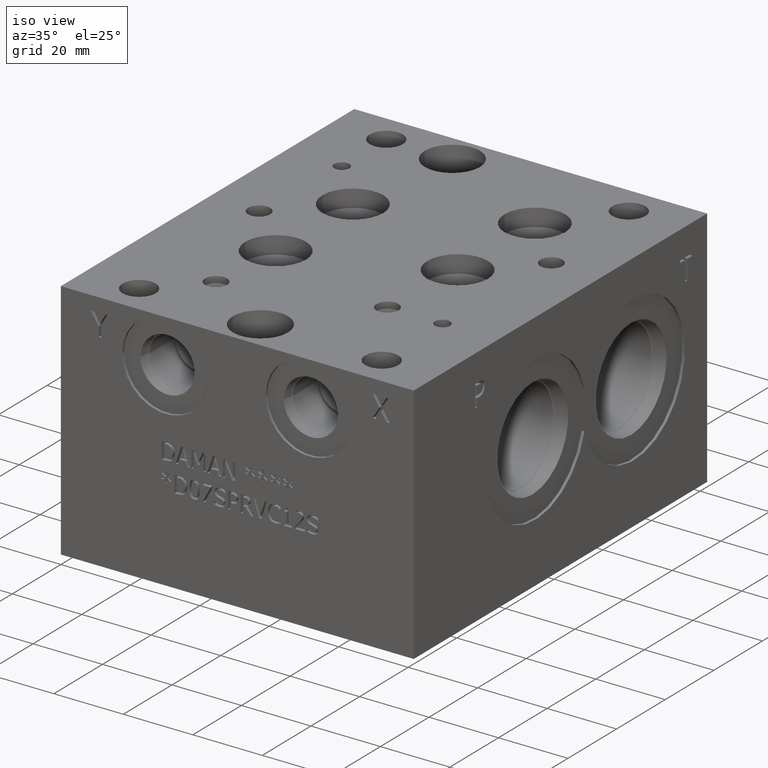
[diagram: clean part render]
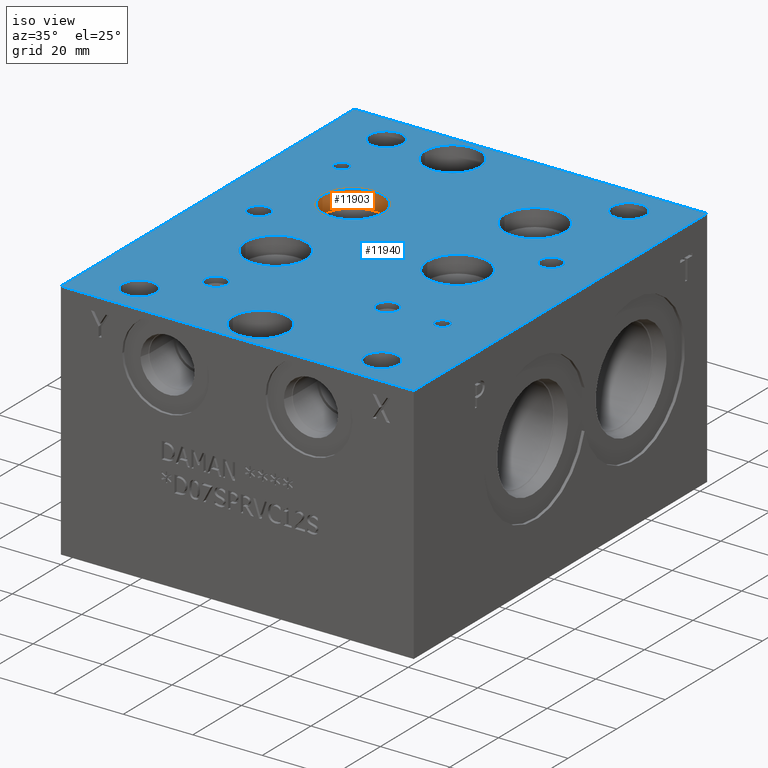
[diagram: same view with the hole feature highlighted: cylindrical wall and planar end face, labeled with their STEP entity ids]
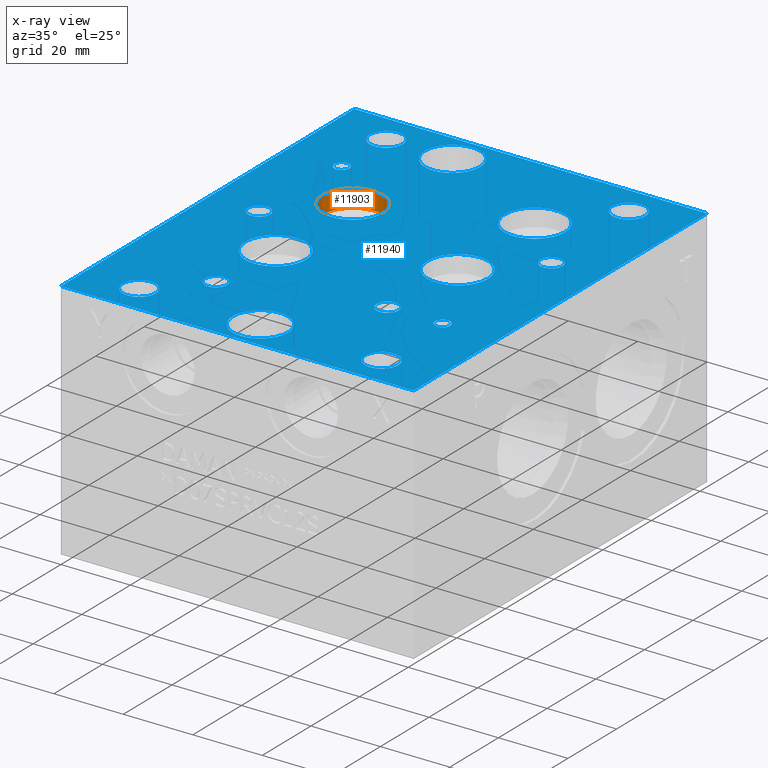
[diagram: x-ray of the same camera — body ghosted, the hole faces saturated]
A machine part, iso view. The highlighted faces form one hole feature of diameter 17.4752 mm: the cylindrical wall (entity #11903, orange) and its adjacent planar end face (entity #11940, blue) — they share a circular edge in the B-rep.
The next image is the same camera in x-ray (body ghosted, the hole faces saturated) — the bore reads through the body.
Wall:
#123=CYLINDRICAL_SURFACE('',#12580,8.7376);
#329=CIRCLE('',#12578,8.7376);
#330=CIRCLE('',#12579,8.7376);
#331=CIRCLE('',#12581,8.7376);
#332=CIRCLE('',#12582,8.7376);
#1480=FACE_OUTER_BOUND('',#2151,.T.);
#2151=EDGE_LOOP('',(#10329,#10330,#10331,#10332,#10333,#10334));
#3287=LINE('',#20433,#4392);
#4392=VECTOR('',#15015,8.7376);
#5477=VERTEX_POINT('',#20422);
#5478=VERTEX_POINT('',#20423);
#5480=VERTEX_POINT('',#20429);
#5481=VERTEX_POINT('',#20430);
#7119=EDGE_CURVE('',#5477,#5478,#329,.T.);
#7121=EDGE_CURVE('',#5478,#5477,#330,.T.);
#7122=EDGE_CURVE('',#5480,#5481,#331,.T.);
#7123=EDGE_CURVE('',#5481,#5480,#332,.T.);
#7124=EDGE_CURVE('',#5481,#5478,#3287,.T.);
#10329=ORIENTED_EDGE('',*,*,#7122,.F.);
#10330=ORIENTED_EDGE('',*,*,#7123,.F.);
#10331=ORIENTED_EDGE('',*,*,#7124,.T.);
#10332=ORIENTED_EDGE('',*,*,#7119,.F.);
#10333=ORIENTED_EDGE('',*,*,#7121,.F.);
#10334=ORIENTED_EDGE('',*,*,#7124,.F.);
#11903=ADVANCED_FACE('',(#1480),#123,.F.);
#12578=AXIS2_PLACEMENT_3D('',#20424,#15004,#15005);
#12579=AXIS2_PLACEMENT_3D('',#20427,#15007,#15008);
#12580=AXIS2_PLACEMENT_3D('',#20428,#15009,#15010);
#12581=AXIS2_PLACEMENT_3D('',#20431,#15011,#15012);
#12582=AXIS2_PLACEMENT_3D('',#20432,#15013,#15014);
#15004=DIRECTION('center_axis',(0.,0.,1.));
#15005=DIRECTION('ref_axis',(1.,0.,0.));
#15007=DIRECTION('center_axis',(0.,0.,1.));
#15008=DIRECTION('ref_axis',(1.,0.,0.));
#15009=DIRECTION('center_axis',(0.,0.,1.));
#15010=DIRECTION('ref_axis',(1.,0.,0.));
#15011=DIRECTION('center_axis',(0.,0.,-1.));
#15012=DIRECTION('ref_axis',(1.,0.,0.));
#15013=DIRECTION('center_axis',(0.,0.,-1.));
#15014=DIRECTION('ref_axis',(1.,0.,0.));
#15015=DIRECTION('',(0.,0.,-1.));
#20422=CARTESIAN_POINT('',(38.9128,76.9874,64.80534));
#20423=CARTESIAN_POINT('',(21.4376,76.9874,64.80534));
#20424=CARTESIAN_POINT('Origin',(30.1752,76.9874,64.80534));
#20427=CARTESIAN_POINT('Origin',(30.1752,76.9874,64.80534));
#20428=CARTESIAN_POINT('Origin',(30.1752,76.9874,67.32767));
#20429=CARTESIAN_POINT('',(38.9128,76.9874,69.85));
#20430=CARTESIAN_POINT('',(21.4376,76.9874,69.85));
#20431=CARTESIAN_POINT('Origin',(30.1752,76.9874,69.85));
#20432=CARTESIAN_POINT('Origin',(30.1752,76.9874,69.85));
#20433=CARTESIAN_POINT('',(21.4376,76.9874,67.32767));
End face:
#314=CIRCLE('',#12554,7.9375);
#315=CIRCLE('',#12555,7.9375);
#319=CIRCLE('',#12562,7.9375);
#320=CIRCLE('',#12563,7.9375);
#323=CIRCLE('',#12569,3.175);
#324=CIRCLE('',#12570,3.175);
#327=CIRCLE('',#12575,3.175);
#328=CIRCLE('',#12576,3.175);
#331=CIRCLE('',#12581,8.7376);
#332=CIRCLE('',#12582,8.7376);
#335=CIRCLE('',#12587,8.7376);
#336=CIRCLE('',#12588,8.7376);
#339=CIRCLE('',#12593,8.7376);
#340=CIRCLE('',#12594,8.7376);
#343=CIRCLE('',#12599,8.7376);
#344=CIRCLE('',#12600,8.7376);
#347=CIRCLE('',#12605,2.1717);
#348=CIRCLE('',#12606,2.1717);
#351=CIRCLE('',#12611,2.1717);
#352=CIRCLE('',#12612,2.1717);
#358=CIRCLE('',#12621,3.175);
#359=CIRCLE('',#12622,3.175);
#365=CIRCLE('',#12632,3.175);
#366=CIRCLE('',#12633,3.175);
#372=CIRCLE('',#12643,4.7625);
#373=CIRCLE('',#12644,4.7625);
#379=CIRCLE('',#12654,4.7625);
#380=CIRCLE('',#12655,4.7625);
#386=CIRCLE('',#12665,4.7625);
#387=CIRCLE('',#12666,4.7625);
#393=CIRCLE('',#12676,4.7625);
#394=CIRCLE('',#12677,4.7625);
#467=FACE_BOUND('',#2196,.T.);
#468=FACE_BOUND('',#2197,.T.);
#469=FACE_BOUND('',#2198,.T.);
#470=FACE_BOUND('',#2199,.T.);
#471=FACE_BOUND('',#2200,.T.);
#472=FACE_BOUND('',#2201,.T.);
#473=FACE_BOUND('',#2202,.T.);
#474=FACE_BOUND('',#2203,.T.);
#475=FACE_BOUND('',#2204,.T.);
#476=FACE_BOUND('',#2205,.T.);
#477=FACE_BOUND('',#2206,.T.);
#478=FACE_BOUND('',#2207,.T.);
#479=FACE_BOUND('',#2208,.T.);
#480=FACE_BOUND('',#2209,.T.);
#481=FACE_BOUND('',#2210,.T.);
#482=FACE_BOUND('',#2211,.T.);
#1517=FACE_OUTER_BOUND('',#2195,.T.);
#2195=EDGE_LOOP('',(#10502,#10503,#10504,#10505));
#2196=EDGE_LOOP('',(#10506,#10507));
#2197=EDGE_LOOP('',(#10508,#10509));
#2198=EDGE_LOOP('',(#10510,#10511));
#2199=EDGE_LOOP('',(#10512,#10513));
#2200=EDGE_LOOP('',(#10514,#10515));
#2201=EDGE_LOOP('',(#10516,#10517));
#2202=EDGE_LOOP('',(#10518,#10519));
#2203=EDGE_LOOP('',(#10520,#10521));
#2204=EDGE_LOOP('',(#10522,#10523));
#2205=EDGE_LOOP('',(#10524,#10525));
#2206=EDGE_LOOP('',(#10526,#10527));
#2207=EDGE_LOOP('',(#10528,#10529));
#2208=EDGE_LOOP('',(#10530,#10531));
#2209=EDGE_LOOP('',(#10532,#10533));
#2210=EDGE_LOOP('',(#10534,#10535));
#2211=EDGE_LOOP('',(#10536,#10537));
#2305=LINE('',#15716,#3410);
#2681=LINE('',#18100,#3786);
#3167=LINE('',#19472,#4272);
#3316=LINE('',#20632,#4421);
#3410=VECTOR('',#12843,10.);
#3786=VECTOR('',#13437,10.);
#4272=VECTOR('',#14277,10.);
#4421=VECTOR('',#15238,10.);
#4510=VERTEX_POINT('',#15713);
#4511=VERTEX_POINT('',#15715);
#4890=VERTEX_POINT('',#18099);
#5247=VERTEX_POINT('',#19471);
#5460=VERTEX_POINT('',#20373);
#5461=VERTEX_POINT('',#20374);
#5465=VERTEX_POINT('',#20388);
#5466=VERTEX_POINT('',#20389);
#5470=VERTEX_POINT('',#20403);
#5471=VERTEX_POINT('',#20404);
#5475=VERTEX_POINT('',#20416);
#5476=VERTEX_POINT('',#20417);
#5480=VERTEX_POINT('',#20429);
#5481=VERTEX_POINT('',#20430);
#5485=VERTEX_POINT('',#20442);
#5486=VERTEX_POINT('',#20443);
#5490=VERTEX_POINT('',#20455);
#5491=VERTEX_POINT('',#20456);
#5495=VERTEX_POINT('',#20468);
#5496=VERTEX_POINT('',#20469);
#5500=VERTEX_POINT('',#20481);
#5501=VERTEX_POINT('',#20482);
#5505=VERTEX_POINT('',#20494);
#5506=VERTEX_POINT('',#20495);
#5513=VERTEX_POINT('',#20514);
#5514=VERTEX_POINT('',#20515);
#5521=VERTEX_POINT('',#20536);
#5522=VERTEX_POINT('',#20537);
#5529=VERTEX_POINT('',#20558);
#5530=VERTEX_POINT('',#20559);
#5537=VERTEX_POINT('',#20580);
#5538=VERTEX_POINT('',#20581);
#5545=VERTEX_POINT('',#20602);
#5546=VERTEX_POINT('',#20603);
#5553=VERTEX_POINT('',#20624);
#5554=VERTEX_POINT('',#20625);
#5684=EDGE_CURVE('',#4511,#4510,#2305,.T.);
#6252=EDGE_CURVE('',#4890,#4511,#2681,.T.);
#6786=EDGE_CURVE('',#5247,#4890,#3167,.T.);
#7096=EDGE_CURVE('',#5460,#5461,#314,.T.);
#7097=EDGE_CURVE('',#5461,#5460,#315,.T.);
#7103=EDGE_CURVE('',#5465,#5466,#319,.T.);
#7104=EDGE_CURVE('',#5466,#5465,#320,.T.);
#7110=EDGE_CURVE('',#5470,#5471,#323,.T.);
#7111=EDGE_CURVE('',#5471,#5470,#324,.T.);
#7116=EDGE_CURVE('',#5475,#5476,#327,.T.);
#7117=EDGE_CURVE('',#5476,#5475,#328,.T.);
#7122=EDGE_CURVE('',#5480,#5481,#331,.T.);
#7123=EDGE_CURVE('',#5481,#5480,#332,.T.);
#7128=EDGE_CURVE('',#5485,#5486,#335,.T.);
#7129=EDGE_CURVE('',#5486,#5485,#336,.T.);
#7134=EDGE_CURVE('',#5490,#5491,#339,.T.);
#7135=EDGE_CURVE('',#5491,#5490,#340,.T.);
#7140=EDGE_CURVE('',#5495,#5496,#343,.T.);
#7141=EDGE_CURVE('',#5496,#5495,#344,.T.);
#7146=EDGE_CURVE('',#5500,#5501,#347,.T.);
#7147=EDGE_CURVE('',#5501,#5500,#348,.T.);
#7152=EDGE_CURVE('',#5505,#5506,#351,.T.);
#7153=EDGE_CURVE('',#5506,#5505,#352,.T.);
#7161=EDGE_CURVE('',#5513,#5514,#358,.T.);
#7162=EDGE_CURVE('',#5514,#5513,#359,.T.);
#7171=EDGE_CURVE('',#5521,#5522,#365,.T.);
#7172=EDGE_CURVE('',#5522,#5521,#366,.T.);
#7181=EDGE_CURVE('',#5529,#5530,#372,.T.);
#7182=EDGE_CURVE('',#5530,#5529,#373,.T.);
#7191=EDGE_CURVE('',#5537,#5538,#379,.T.);
#7192=EDGE_CURVE('',#5538,#5537,#380,.T.);
#7201=EDGE_CURVE('',#5545,#5546,#386,.T.);
#7202=EDGE_CURVE('',#5546,#5545,#387,.T.);
#7211=EDGE_CURVE('',#5553,#5554,#393,.T.);
#7212=EDGE_CURVE('',#5554,#5553,#394,.T.);
#7215=EDGE_CURVE('',#4510,#5247,#3316,.T.);
#10502=ORIENTED_EDGE('',*,*,#6252,.T.);
#10503=ORIENTED_EDGE('',*,*,#5684,.T.);
#10504=ORIENTED_EDGE('',*,*,#7215,.T.);
#10505=ORIENTED_EDGE('',*,*,#6786,.T.);
#10506=ORIENTED_EDGE('',*,*,#7096,.T.);
#10507=ORIENTED_EDGE('',*,*,#7097,.T.);
#10508=ORIENTED_EDGE('',*,*,#7103,.T.);
#10509=ORIENTED_EDGE('',*,*,#7104,.T.);
#10510=ORIENTED_EDGE('',*,*,#7110,.T.);
#10511=ORIENTED_EDGE('',*,*,#7111,.T.);
#10512=ORIENTED_EDGE('',*,*,#7116,.T.);
#10513=ORIENTED_EDGE('',*,*,#7117,.T.);
#10514=ORIENTED_EDGE('',*,*,#7122,.T.);
#10515=ORIENTED_EDGE('',*,*,#7123,.T.);
#10516=ORIENTED_EDGE('',*,*,#7128,.T.);
#10517=ORIENTED_EDGE('',*,*,#7129,.T.);
#10518=ORIENTED_EDGE('',*,*,#7134,.T.);
#10519=ORIENTED_EDGE('',*,*,#7135,.T.);
#10520=ORIENTED_EDGE('',*,*,#7140,.T.);
#10521=ORIENTED_EDGE('',*,*,#7141,.T.);
#10522=ORIENTED_EDGE('',*,*,#7146,.T.);
#10523=ORIENTED_EDGE('',*,*,#7147,.T.);
#10524=ORIENTED_EDGE('',*,*,#7152,.T.);
#10525=ORIENTED_EDGE('',*,*,#7153,.T.);
#10526=ORIENTED_EDGE('',*,*,#7161,.T.);
#10527=ORIENTED_EDGE('',*,*,#7162,.T.);
#10528=ORIENTED_EDGE('',*,*,#7171,.T.);
#10529=ORIENTED_EDGE('',*,*,#7172,.T.);
#10530=ORIENTED_EDGE('',*,*,#7181,.T.);
#10531=ORIENTED_EDGE('',*,*,#7182,.T.);
#10532=ORIENTED_EDGE('',*,*,#7191,.T.);
#10533=ORIENTED_EDGE('',*,*,#7192,.T.);
#10534=ORIENTED_EDGE('',*,*,#7201,.T.);
#10535=ORIENTED_EDGE('',*,*,#7202,.T.);
#10536=ORIENTED_EDGE('',*,*,#7211,.T.);
#10537=ORIENTED_EDGE('',*,*,#7212,.T.);
#10889=PLANE('',#12681);
#11940=ADVANCED_FACE('',(#1517,#467,#468,#469,#470,#471,#472,#473,#474,
#475,#476,#477,#478,#479,#480,#481,#482),#10889,.T.);
#12554=AXIS2_PLACEMENT_3D('',#20375,#14948,#14949);
#12555=AXIS2_PLACEMENT_3D('',#20376,#14950,#14951);
#12562=AXIS2_PLACEMENT_3D('',#20390,#14966,#14967);
#12563=AXIS2_PLACEMENT_3D('',#20391,#14968,#14969);
#12569=AXIS2_PLACEMENT_3D('',#20405,#14983,#14984);
#12570=AXIS2_PLACEMENT_3D('',#20406,#14985,#14986);
#12575=AXIS2_PLACEMENT_3D('',#20418,#14997,#14998);
#12576=AXIS2_PLACEMENT_3D('',#20419,#14999,#15000);
#12581=AXIS2_PLACEMENT_3D('',#20431,#15011,#15012);
#12582=AXIS2_PLACEMENT_3D('',#20432,#15013,#15014);
#12587=AXIS2_PLACEMENT_3D('',#20444,#15025,#15026);
#12588=AXIS2_PLACEMENT_3D('',#20445,#15027,#15028);
#12593=AXIS2_PLACEMENT_3D('',#20457,#15039,#15040);
#12594=AXIS2_PLACEMENT_3D('',#20458,#15041,#15042);
#12599=AXIS2_PLACEMENT_3D('',#20470,#15053,#15054);
#12600=AXIS2_PLACEMENT_3D('',#20471,#15055,#15056);
#12605=AXIS2_PLACEMENT_3D('',#20483,#15067,#15068);
#12606=AXIS2_PLACEMENT_3D('',#20484,#15069,#15070);
#12611=AXIS2_PLACEMENT_3D('',#20496,#15081,#15082);
#12612=AXIS2_PLACEMENT_3D('',#20497,#15083,#15084);
#12621=AXIS2_PLACEMENT_3D('',#20516,#15103,#15104);
#12622=AXIS2_PLACEMENT_3D('',#20517,#15105,#15106);
#12632=AXIS2_PLACEMENT_3D('',#20538,#15128,#15129);
#12633=AXIS2_PLACEMENT_3D('',#20539,#15130,#15131);
#12643=AXIS2_PLACEMENT_3D('',#20560,#15153,#15154);
#12644=AXIS2_PLACEMENT_3D('',#20561,#15155,#15156);
#12654=AXIS2_PLACEMENT_3D('',#20582,#15178,#15179);
#12655=AXIS2_PLACEMENT_3D('',#20583,#15180,#15181);
#12665=AXIS2_PLACEMENT_3D('',#20604,#15203,#15204);
#12666=AXIS2_PLACEMENT_3D('',#20605,#15205,#15206);
#12676=AXIS2_PLACEMENT_3D('',#20626,#15228,#15229);
#12677=AXIS2_PLACEMENT_3D('',#20627,#15230,#15231);
#12681=AXIS2_PLACEMENT_3D('',#20634,#15241,#15242);
#12843=DIRECTION('',(0.,1.,0.));
#13437=DIRECTION('',(1.,0.,0.));
#14277=DIRECTION('',(0.,-1.,0.));
#14948=DIRECTION('center_axis',(0.,0.,-1.));
#14949=DIRECTION('ref_axis',(1.,0.,0.));
#14950=DIRECTION('center_axis',(0.,0.,-1.));
#14951=DIRECTION('ref_axis',(1.,0.,0.));
#14966=DIRECTION('center_axis',(0.,0.,-1.));
#14967=DIRECTION('ref_axis',(1.,0.,0.));
#14968=DIRECTION('center_axis',(0.,0.,-1.));
#14969=DIRECTION('ref_axis',(1.,0.,0.));
#14983=DIRECTION('center_axis',(0.,0.,-1.));
#14984=DIRECTION('ref_axis',(1.,0.,0.));
#14985=DIRECTION('center_axis',(0.,0.,-1.));
#14986=DIRECTION('ref_axis',(1.,0.,0.));
#14997=DIRECTION('center_axis',(0.,0.,-1.));
#14998=DIRECTION('ref_axis',(1.,0.,0.));
#14999=DIRECTION('center_axis',(0.,0.,-1.));
#15000=DIRECTION('ref_axis',(1.,0.,0.));
#15011=DIRECTION('center_axis',(0.,0.,-1.));
#15012=DIRECTION('ref_axis',(1.,0.,0.));
#15013=DIRECTION('center_axis',(0.,0.,-1.));
#15014=DIRECTION('ref_axis',(1.,0.,0.));
#15025=DIRECTION('center_axis',(0.,0.,-1.));
#15026=DIRECTION('ref_axis',(1.,0.,0.));
#15027=DIRECTION('center_axis',(0.,0.,-1.));
#15028=DIRECTION('ref_axis',(1.,0.,0.));
#15039=DIRECTION('center_axis',(0.,0.,-1.));
#15040=DIRECTION('ref_axis',(1.,0.,0.));
#15041=DIRECTION('center_axis',(0.,0.,-1.));
#15042=DIRECTION('ref_axis',(1.,0.,0.));
#15053=DIRECTION('center_axis',(0.,0.,-1.));
#15054=DIRECTION('ref_axis',(1.,0.,0.));
#15055=DIRECTION('center_axis',(0.,0.,-1.));
#15056=DIRECTION('ref_axis',(1.,0.,0.));
#15067=DIRECTION('center_axis',(0.,0.,-1.));
#15068=DIRECTION('ref_axis',(1.,0.,0.));
#15069=DIRECTION('center_axis',(0.,0.,-1.));
#15070=DIRECTION('ref_axis',(1.,0.,0.));
#15081=DIRECTION('center_axis',(0.,0.,-1.));
#15082=DIRECTION('ref_axis',(1.,0.,0.));
#15083=DIRECTION('center_axis',(0.,0.,-1.));
#15084=DIRECTION('ref_axis',(1.,0.,0.));
#15103=DIRECTION('center_axis',(0.,0.,-1.));
#15104=DIRECTION('ref_axis',(1.,0.,0.));
#15105=DIRECTION('center_axis',(0.,0.,-1.));
#15106=DIRECTION('ref_axis',(1.,0.,0.));
#15128=DIRECTION('center_axis',(0.,0.,-1.));
#15129=DIRECTION('ref_axis',(1.,0.,0.));
#15130=DIRECTION('center_axis',(0.,0.,-1.));
#15131=DIRECTION('ref_axis',(1.,0.,0.));
#15153=DIRECTION('center_axis',(0.,0.,-1.));
#15154=DIRECTION('ref_axis',(1.,0.,0.));
#15155=DIRECTION('center_axis',(0.,0.,-1.));
#15156=DIRECTION('ref_axis',(1.,0.,0.));
#15178=DIRECTION('center_axis',(0.,0.,-1.));
#15179=DIRECTION('ref_axis',(1.,0.,0.));
#15180=DIRECTION('center_axis',(0.,0.,-1.));
#15181=DIRECTION('ref_axis',(1.,0.,0.));
#15203=DIRECTION('center_axis',(0.,0.,-1.));
#15204=DIRECTION('ref_axis',(1.,0.,0.));
#15205=DIRECTION('center_axis',(0.,0.,-1.));
#15206=DIRECTION('ref_axis',(1.,0.,0.));
#15228=DIRECTION('center_axis',(0.,0.,-1.));
#15229=DIRECTION('ref_axis',(1.,0.,0.));
#15230=DIRECTION('center_axis',(0.,0.,-1.));
#15231=DIRECTION('ref_axis',(1.,0.,0.));
#15238=DIRECTION('',(-1.,0.,0.));
#15241=DIRECTION('center_axis',(0.,0.,1.));
#15242=DIRECTION('ref_axis',(1.,0.,0.));
#15713=CARTESIAN_POINT('',(101.6,120.65,69.85));
#15715=CARTESIAN_POINT('',(101.6,0.,69.85));
#15716=CARTESIAN_POINT('',(101.6,0.,69.85));
#18099=CARTESIAN_POINT('',(0.,0.,69.85));
#18100=CARTESIAN_POINT('',(0.,0.,69.85));
#19471=CARTESIAN_POINT('',(0.,120.65,69.85));
#19472=CARTESIAN_POINT('',(0.,120.65,69.85));
#20373=CARTESIAN_POINT('',(42.8625,111.125,69.85));
#20374=CARTESIAN_POINT('',(26.9875,111.125,69.85));
#20375=CARTESIAN_POINT('Origin',(34.925,111.125,69.85));
#20376=CARTESIAN_POINT('Origin',(34.925,111.125,69.85));
#20388=CARTESIAN_POINT('',(58.7375,9.525,69.85));
#20389=CARTESIAN_POINT('',(42.8625,9.525,69.85));
#20390=CARTESIAN_POINT('Origin',(50.8,9.525,69.85));
#20391=CARTESIAN_POINT('Origin',(50.8,9.525,69.85));
#20403=CARTESIAN_POINT('',(73.0504,34.5186,69.85));
#20404=CARTESIAN_POINT('',(66.7004,34.5186,69.85));
#20405=CARTESIAN_POINT('Origin',(69.8754,34.5186,69.85));
#20406=CARTESIAN_POINT('Origin',(69.8754,34.5186,69.85));
#20416=CARTESIAN_POINT('',(31.75,23.0124,69.85));
#20417=CARTESIAN_POINT('',(25.4,23.0124,69.85));
#20418=CARTESIAN_POINT('Origin',(28.575,23.0124,69.85));
#20419=CARTESIAN_POINT('Origin',(28.575,23.0124,69.85));
#20429=CARTESIAN_POINT('',(38.9128,76.9874,69.85));
#20430=CARTESIAN_POINT('',(21.4376,76.9874,69.85));
#20431=CARTESIAN_POINT('Origin',(30.1752,76.9874,69.85));
#20432=CARTESIAN_POINT('Origin',(30.1752,76.9874,69.85));
#20442=CARTESIAN_POINT('',(80.1878,61.1124,69.85));
#20443=CARTESIAN_POINT('',(62.7126,61.1124,69.85));
#20444=CARTESIAN_POINT('Origin',(71.4502,61.1124,69.85));
#20445=CARTESIAN_POINT('Origin',(71.4502,61.1124,69.85));
#20455=CARTESIAN_POINT('',(80.1878,92.8624,69.85));
#20456=CARTESIAN_POINT('',(62.7126,92.8624,69.85));
#20457=CARTESIAN_POINT('Origin',(71.4502,92.8624,69.85));
#20458=CARTESIAN_POINT('Origin',(71.4502,92.8624,69.85));
#20468=CARTESIAN_POINT('',(38.9128,45.2374,69.85));
#20469=CARTESIAN_POINT('',(21.4376,45.2374,69.85));
#20470=CARTESIAN_POINT('Origin',(30.1752,45.2374,69.85));
#20471=CARTESIAN_POINT('Origin',(30.1752,45.2374,69.85));
#20481=CARTESIAN_POINT('',(87.8967,34.5186,69.85));
#20482=CARTESIAN_POINT('',(83.5533,34.5186,69.85));
#20483=CARTESIAN_POINT('Origin',(85.725,34.5186,69.85));
#20484=CARTESIAN_POINT('Origin',(85.725,34.5186,69.85));
#20494=CARTESIAN_POINT('',(18.0467,92.8624,69.85));
#20495=CARTESIAN_POINT('',(13.7033,92.8624,69.85));
#20496=CARTESIAN_POINT('Origin',(15.875,92.8624,69.85));
#20497=CARTESIAN_POINT('Origin',(15.875,92.8624,69.85));
#20514=CARTESIAN_POINT('',(17.4752,61.1124,69.85));
#20515=CARTESIAN_POINT('',(11.1252,61.1124,69.85));
#20516=CARTESIAN_POINT('Origin',(14.3002,61.1124,69.85));
#20517=CARTESIAN_POINT('Origin',(14.3002,61.1124,69.85));
#20536=CARTESIAN_POINT('',(90.5002,76.9874,69.85));
#20537=CARTESIAN_POINT('',(84.1502,76.9874,69.85));
#20538=CARTESIAN_POINT('Origin',(87.3252,76.9874,69.85));
#20539=CARTESIAN_POINT('Origin',(87.3252,76.9874,69.85));
#20558=CARTESIAN_POINT('',(90.4875,9.525,69.85));
#20559=CARTESIAN_POINT('',(80.9625,9.525,69.85));
#20560=CARTESIAN_POINT('Origin',(85.725,9.525,69.85));
#20561=CARTESIAN_POINT('Origin',(85.725,9.525,69.85));
#20580=CARTESIAN_POINT('',(20.6375,111.125,69.85));
#20581=CARTESIAN_POINT('',(11.1125,111.125,69.85));
#20582=CARTESIAN_POINT('Origin',(15.875,111.125,69.85));
#20583=CARTESIAN_POINT('Origin',(15.875,111.125,69.85));
#20602=CARTESIAN_POINT('',(90.4875,111.125,69.85));
#20603=CARTESIAN_POINT('',(80.9625,111.125,69.85));
#20604=CARTESIAN_POINT('Origin',(85.725,111.125,69.85));
#20605=CARTESIAN_POINT('Origin',(85.725,111.125,69.85));
#20624=CARTESIAN_POINT('',(20.6375,9.525,69.85));
#20625=CARTESIAN_POINT('',(11.1125,9.525,69.85));
#20626=CARTESIAN_POINT('Origin',(15.875,9.525,69.85));
#20627=CARTESIAN_POINT('Origin',(15.875,9.525,69.85));
#20632=CARTESIAN_POINT('',(101.6,120.65,69.85));
#20634=CARTESIAN_POINT('Origin',(50.8,60.325,69.85));